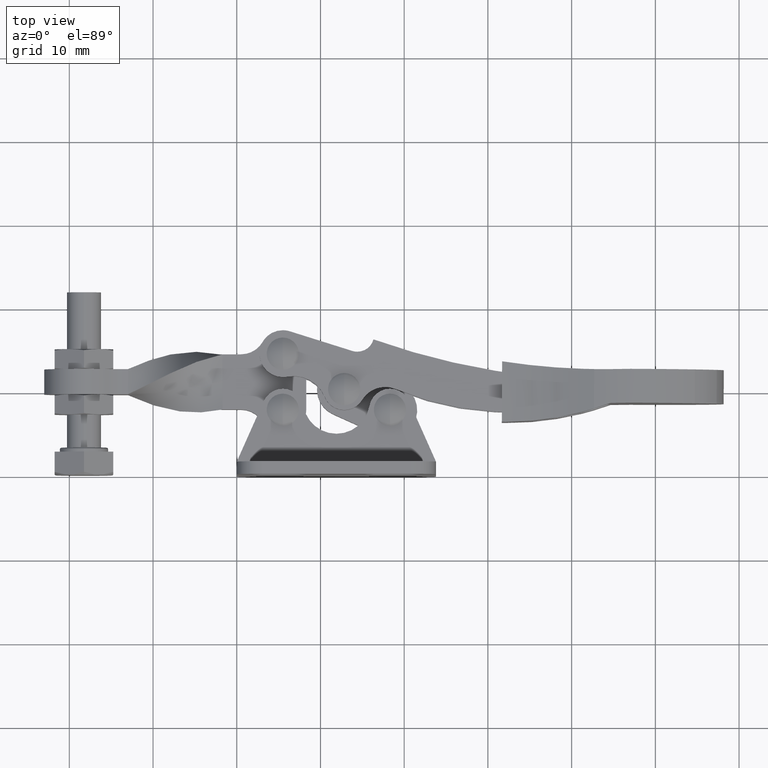
[diagram: clean part render]
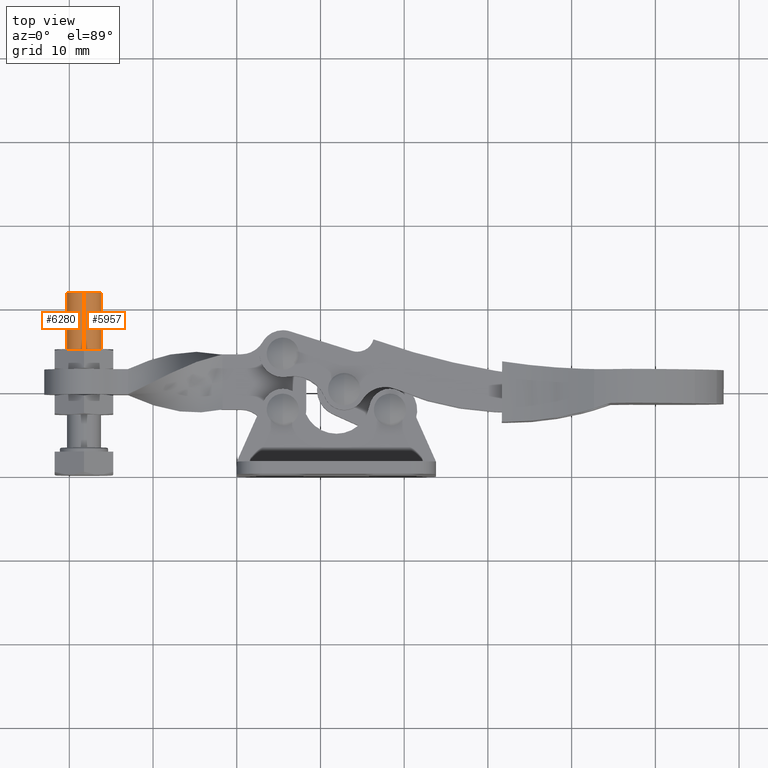
[diagram: same view with one multi-face feature highlighted, each face labeled with its STEP entity id]
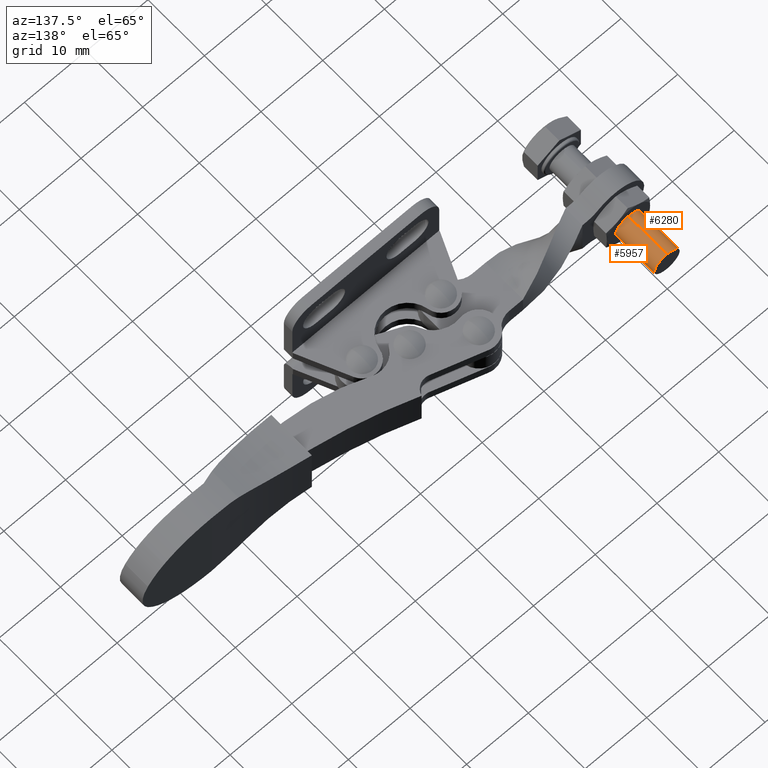
[diagram: same view with one multi-face feature highlighted, each face labeled with its STEP entity id]
A machine part, top view. The highlighted faces form ONE feature: a constant-radius fillet chain: 2 tangent blend faces with common blend radius 2.05 mm. The faces share edges in the B-rep.
A second angle (auxiliary view) of the same feature is appended — it is thin or edge-on in the first view.
Their STEP definitions:
[1] entity #6280 (Cylinder):
#202 = VERTEX_POINT ( 'NONE', #5192 ) ;
#251 = AXIS2_PLACEMENT_3D ( 'NONE', #3266, #3252, #3228 ) ;
#862 = LINE ( 'NONE', #4625, #8598 ) ;
#1166 = DIRECTION ( 'NONE',  ( 0.0000000000000000000, 0.0000000000000000000, -1.000000000000000000 ) ) ;
#1175 = DIRECTION ( 'NONE',  ( -0.0000000000000000000, 1.000000000000000000, 0.0000000000000000000 ) ) ;
#1198 = CARTESIAN_POINT ( 'NONE',  ( -18.25000000000123600, 15.05000000000086200, -1.499999999999901200 ) ) ;
#1621 = VERTEX_POINT ( 'NONE', #5909 ) ;
#2577 = DIRECTION ( 'NONE',  ( 0.0000000000000000000, 0.0000000000000000000, -1.000000000000000000 ) ) ;
#2589 = CARTESIAN_POINT ( 'NONE',  ( -18.25000000000123600, 21.86000000000086600, -1.499999999999901200 ) ) ;
#2765 = VERTEX_POINT ( 'NONE', #4483 ) ;
#2783 = DIRECTION ( 'NONE',  ( -0.0000000000000000000, -1.000000000000000000, -0.0000000000000000000 ) ) ;
#3044 = LINE ( 'NONE', #3900, #9118 ) ;
#3228 = DIRECTION ( 'NONE',  ( 0.0000000000000000000, 0.0000000000000000000, 1.000000000000000000 ) ) ;
#3252 = DIRECTION ( 'NONE',  ( 0.0000000000000000000, 1.000000000000000000, 0.0000000000000000000 ) ) ;
#3266 = CARTESIAN_POINT ( 'NONE',  ( -18.25000000000123600, 21.86000000000086600, -1.499999999999901200 ) ) ;
#3900 = CARTESIAN_POINT ( 'NONE',  ( -18.25000000000123600, 21.86000000000086600, -3.549999999999900800 ) ) ;
#3931 = DIRECTION ( 'NONE',  ( -0.0000000000000000000, -1.000000000000000000, -0.0000000000000000000 ) ) ;
#4483 = CARTESIAN_POINT ( 'NONE',  ( -18.25000000000123600, 21.86000000000086600, -3.549999999999900800 ) ) ;
#4599 = DIRECTION ( 'NONE',  ( -0.0000000000000000000, -1.000000000000000000, -0.0000000000000000000 ) ) ;
#4625 = CARTESIAN_POINT ( 'NONE',  ( -18.25000000000123600, 21.86000000000086600, 0.5500000000000986300 ) ) ;
#4909 = EDGE_CURVE ( 'NONE', #202, #5815, #862, .T. ) ;
#4934 = EDGE_CURVE ( 'NONE', #2765, #1621, #3044, .T. ) ;
#5192 = CARTESIAN_POINT ( 'NONE',  ( -18.25000000000123600, 21.86000000000086600, 0.5500000000000986300 ) ) ;
#5772 = ORIENTED_EDGE ( 'NONE', *, *, #6352, .T. ) ;
#5815 = VERTEX_POINT ( 'NONE', #6227 ) ;
#5909 = CARTESIAN_POINT ( 'NONE',  ( -18.25000000000123600, 15.05000000000086200, -3.549999999999900800 ) ) ;
#6022 = CIRCLE ( 'NONE', #251, 2.049999999999999800 ) ;
#6034 = ORIENTED_EDGE ( 'NONE', *, *, #4934, .T. ) ;
#6054 = AXIS2_PLACEMENT_3D ( 'NONE', #1198, #1175, #1166 ) ;
#6227 = CARTESIAN_POINT ( 'NONE',  ( -18.25000000000123600, 15.05000000000086200, 0.5500000000000986300 ) ) ;
#6229 = ORIENTED_EDGE ( 'NONE', *, *, #7781, .F. ) ;
#6280 = ADVANCED_FACE ( 'NONE', ( #7588 ), #9203, .T. ) ;
#6318 = AXIS2_PLACEMENT_3D ( 'NONE', #2589, #2783, #2577 ) ;
#6352 = EDGE_CURVE ( 'NONE', #1621, #5815, #6578, .T. ) ;
#6523 = ORIENTED_EDGE ( 'NONE', *, *, #4909, .F. ) ;
#6578 = CIRCLE ( 'NONE', #6054, 2.049999999999999800 ) ;
#7588 = FACE_OUTER_BOUND ( 'NONE', #7906, .T. ) ;
#7781 = EDGE_CURVE ( 'NONE', #2765, #202, #6022, .T. ) ;
#7906 = EDGE_LOOP ( 'NONE', ( #6523, #6229, #6034, #5772 ) ) ;
#8598 = VECTOR ( 'NONE', #4599, 1000.000000000000000 ) ;
#9118 = VECTOR ( 'NONE', #3931, 1000.000000000000000 ) ;
#9203 = CYLINDRICAL_SURFACE ( 'NONE', #6318, 2.049999999999999800 ) ;
[2] entity #5957 (Cylinder):
#202 = VERTEX_POINT ( 'NONE', #5192 ) ;
#862 = LINE ( 'NONE', #4625, #8598 ) ;
#916 = AXIS2_PLACEMENT_3D ( 'NONE', #3869, #3833, #3829 ) ;
#931 = ORIENTED_EDGE ( 'NONE', *, *, #4909, .T. ) ;
#948 = AXIS2_PLACEMENT_3D ( 'NONE', #4315, #4098, #4023 ) ;
#1199 = FACE_OUTER_BOUND ( 'NONE', #9107, .T. ) ;
#1621 = VERTEX_POINT ( 'NONE', #5909 ) ;
#2621 = ORIENTED_EDGE ( 'NONE', *, *, #4934, .F. ) ;
#2765 = VERTEX_POINT ( 'NONE', #4483 ) ;
#3044 = LINE ( 'NONE', #3900, #9118 ) ;
#3295 = CIRCLE ( 'NONE', #916, 2.049999999999999800 ) ;
#3829 = DIRECTION ( 'NONE',  ( 0.0000000000000000000, 0.0000000000000000000, -1.000000000000000000 ) ) ;
#3833 = DIRECTION ( 'NONE',  ( -0.0000000000000000000, 1.000000000000000000, 0.0000000000000000000 ) ) ;
#3869 = CARTESIAN_POINT ( 'NONE',  ( -18.25000000000123600, 15.05000000000086200, -1.499999999999901200 ) ) ;
#3900 = CARTESIAN_POINT ( 'NONE',  ( -18.25000000000123600, 21.86000000000086600, -3.549999999999900800 ) ) ;
#3931 = DIRECTION ( 'NONE',  ( -0.0000000000000000000, -1.000000000000000000, -0.0000000000000000000 ) ) ;
#4023 = DIRECTION ( 'NONE',  ( 0.0000000000000000000, 0.0000000000000000000, 1.000000000000000000 ) ) ;
#4098 = DIRECTION ( 'NONE',  ( 0.0000000000000000000, 1.000000000000000000, 0.0000000000000000000 ) ) ;
#4272 = CYLINDRICAL_SURFACE ( 'NONE', #8606, 2.049999999999999800 ) ;
#4315 = CARTESIAN_POINT ( 'NONE',  ( -18.25000000000123600, 21.86000000000086600, -1.499999999999901200 ) ) ;
#4365 = ORIENTED_EDGE ( 'NONE', *, *, #4930, .T. ) ;
#4483 = CARTESIAN_POINT ( 'NONE',  ( -18.25000000000123600, 21.86000000000086600, -3.549999999999900800 ) ) ;
#4599 = DIRECTION ( 'NONE',  ( -0.0000000000000000000, -1.000000000000000000, -0.0000000000000000000 ) ) ;
#4625 = CARTESIAN_POINT ( 'NONE',  ( -18.25000000000123600, 21.86000000000086600, 0.5500000000000986300 ) ) ;
#4909 = EDGE_CURVE ( 'NONE', #202, #5815, #862, .T. ) ;
#4919 = EDGE_CURVE ( 'NONE', #202, #2765, #4940, .T. ) ;
#4930 = EDGE_CURVE ( 'NONE', #5815, #1621, #3295, .T. ) ;
#4934 = EDGE_CURVE ( 'NONE', #2765, #1621, #3044, .T. ) ;
#4940 = CIRCLE ( 'NONE', #948, 2.049999999999999800 ) ;
#5192 = CARTESIAN_POINT ( 'NONE',  ( -18.25000000000123600, 21.86000000000086600, 0.5500000000000986300 ) ) ;
#5537 = DIRECTION ( 'NONE',  ( 0.0000000000000000000, 0.0000000000000000000, -1.000000000000000000 ) ) ;
#5615 = CARTESIAN_POINT ( 'NONE',  ( -18.25000000000123600, 21.86000000000086600, -1.499999999999901200 ) ) ;
#5629 = DIRECTION ( 'NONE',  ( -0.0000000000000000000, -1.000000000000000000, -0.0000000000000000000 ) ) ;
#5815 = VERTEX_POINT ( 'NONE', #6227 ) ;
#5909 = CARTESIAN_POINT ( 'NONE',  ( -18.25000000000123600, 15.05000000000086200, -3.549999999999900800 ) ) ;
#5957 = ADVANCED_FACE ( 'NONE', ( #1199 ), #4272, .T. ) ;
#6227 = CARTESIAN_POINT ( 'NONE',  ( -18.25000000000123600, 15.05000000000086200, 0.5500000000000986300 ) ) ;
#8471 = ORIENTED_EDGE ( 'NONE', *, *, #4919, .F. ) ;
#8598 = VECTOR ( 'NONE', #4599, 1000.000000000000000 ) ;
#8606 = AXIS2_PLACEMENT_3D ( 'NONE', #5615, #5629, #5537 ) ;
#9107 = EDGE_LOOP ( 'NONE', ( #8471, #931, #4365, #2621 ) ) ;
#9118 = VECTOR ( 'NONE', #3931, 1000.000000000000000 ) ;